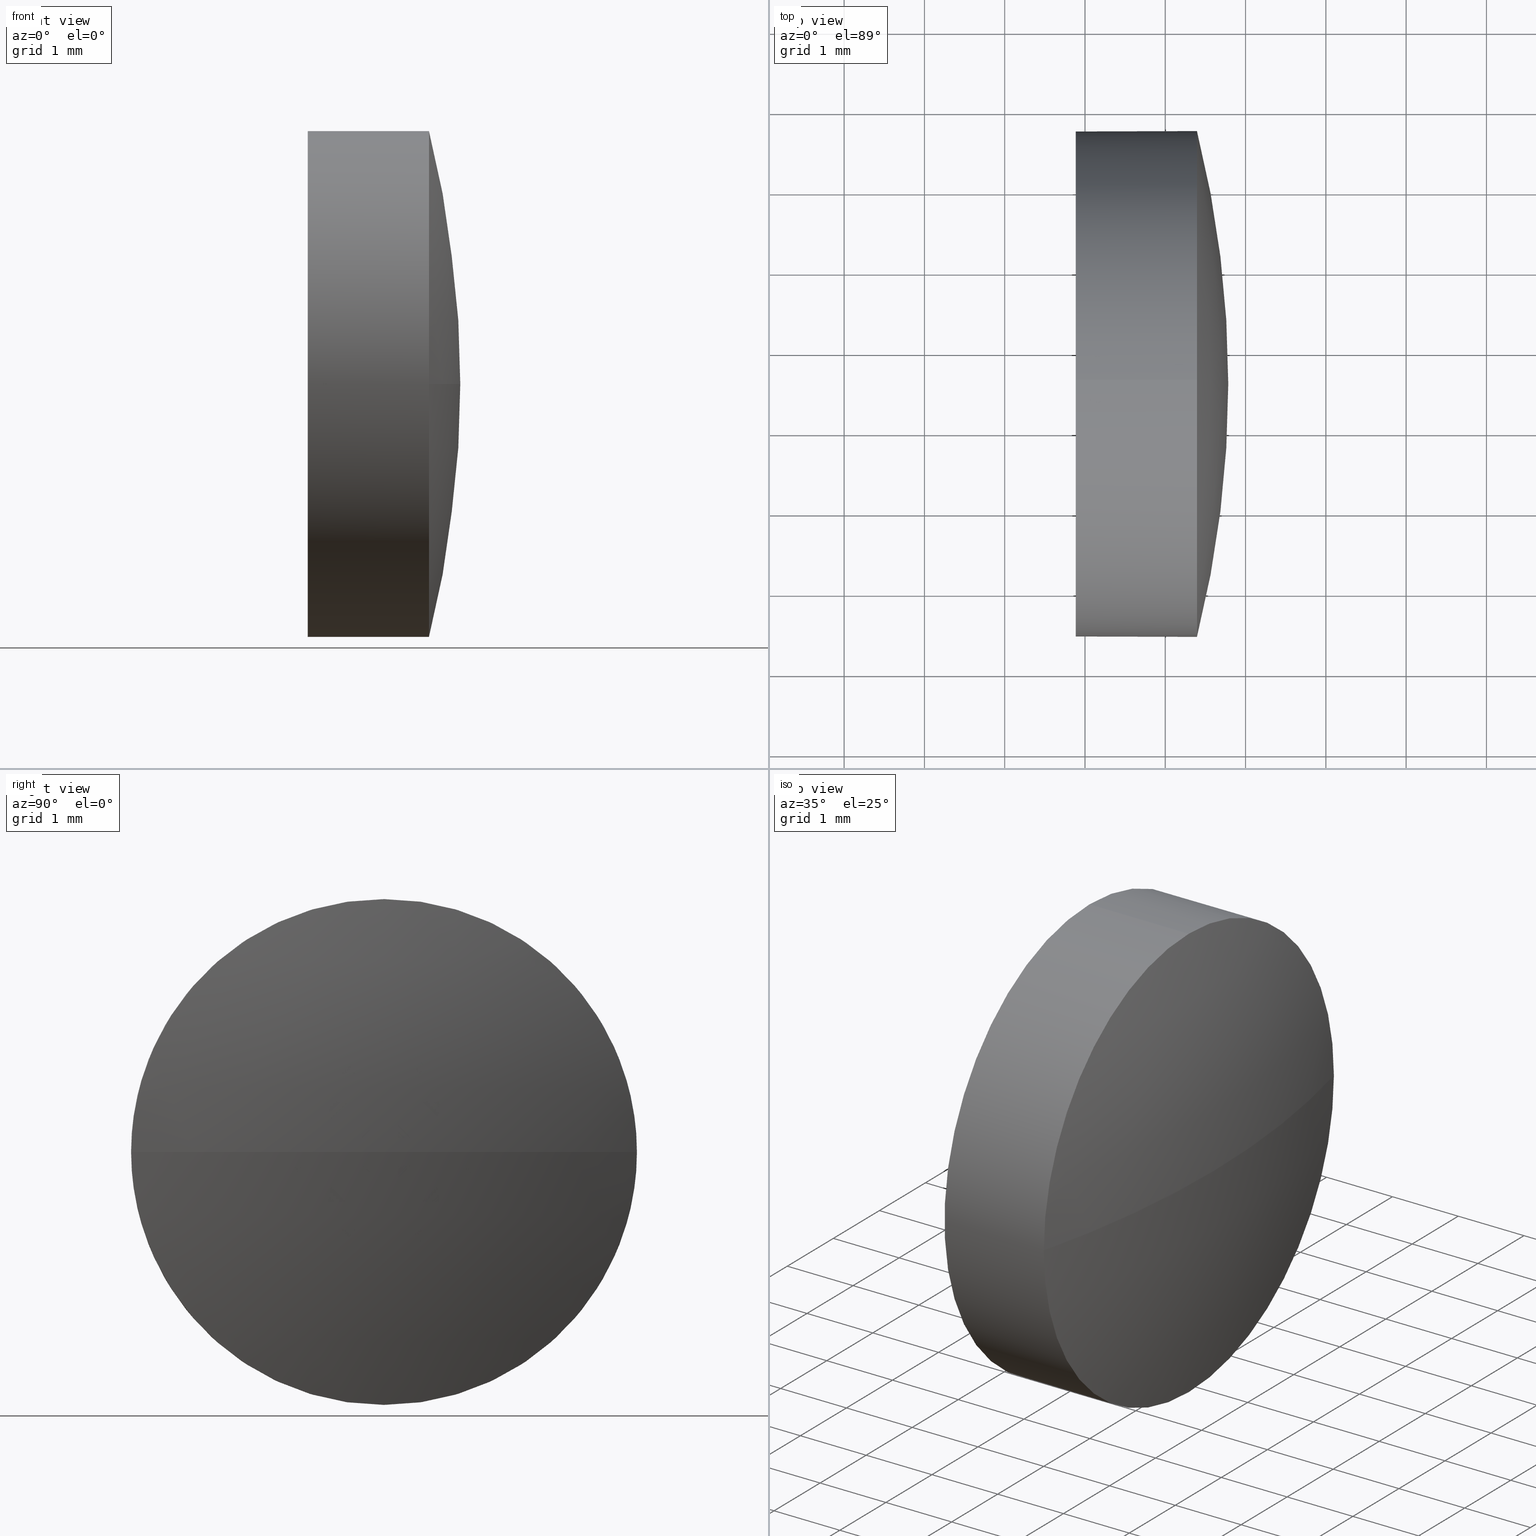
[diagram: canonical four-view strip — front | top / right | iso, engineering-drawing reading convention]
A machine part, canonical four-view strip (front | top / right | iso — engineering-drawing reading convention). The complete STEP part file that produces these views, byte-faithful:
ISO-10303-21;
HEADER;
FILE_DESCRIPTION (( 'STEP AP214' ),
    '1' );
FILE_NAME ('100097.STEP',
    '2019-05-13T05:56:05',
    ( '' ),
    ( '' ),
    'SwSTEP 2.0',
    'SolidWorks 2016',
    '' );
FILE_SCHEMA (( 'AUTOMOTIVE_DESIGN' ));
ENDSEC;

DATA;
#1 = DIRECTION ( 'NONE',  ( -0.0000000000000000000, 0.0000000000000000000, 1.000000000000000000 ) ) ;
#2 = FACE_OUTER_BOUND ( 'NONE', #132, .T. ) ;
#3 = FACE_OUTER_BOUND ( 'NONE', #169, .T. ) ;
#4 = VERTEX_POINT ( 'NONE', #153 ) ;
#5 = CARTESIAN_POINT ( 'NONE',  ( 447.0229086079864400, 67.58735190658296700, 0.0000000000000000000 ) ) ;
#6 = AXIS2_PLACEMENT_3D ( 'NONE', #106, #180, #99 ) ;
#7 = SURFACE_SIDE_STYLE ('',( #66 ) ) ;
#8 = FACE_OUTER_BOUND ( 'NONE', #40, .T. ) ;
#9 = CARTESIAN_POINT ( 'NONE',  ( 447.8845367775709300, 67.58735190658296700, 0.0000000000000000000 ) ) ;
#10 = ORIENTED_EDGE ( 'NONE', *, *, #98, .T. ) ;
#11 = ORIENTED_EDGE ( 'NONE', *, *, #154, .T. ) ;
#12 = AXIS2_PLACEMENT_3D ( 'NONE', #45, #122, #75 ) ;
#13 = VERTEX_POINT ( 'NONE', #69 ) ;
#14 = PRESENTATION_STYLE_ASSIGNMENT (( #62 ) ) ;
#15 = ORIENTED_EDGE ( 'NONE', *, *, #154, .F. ) ;
#16 = CARTESIAN_POINT ( 'NONE',  ( 449.3945367775709200, 67.58735190658296700, 0.0000000000000000000 ) ) ;
#17 =( NAMED_UNIT ( * ) SI_UNIT ( $, .STERADIAN. ) SOLID_ANGLE_UNIT ( ) );
#18 = CARTESIAN_POINT ( 'NONE',  ( 447.0229086079864400, 67.58735190658296700, 3.150000000000013700 ) ) ;
#19 = COLOUR_RGB ( '',1.000000000000000000, 1.000000000000000000, 1.000000000000000000 ) ;
#20 =( NAMED_UNIT ( * ) PLANE_ANGLE_UNIT ( ) SI_UNIT ( $, .RADIAN. ) );
#21 = ADVANCED_FACE ( 'NONE', ( #8 ), #116, .F. ) ;
#22 = MECHANICAL_DESIGN_GEOMETRIC_PRESENTATION_REPRESENTATION (  '', ( #93 ), #72 ) ;
#23 = ORIENTED_EDGE ( 'NONE', *, *, #101, .F. ) ;
#24 = EDGE_CURVE ( 'NONE', #55, #95, #83, .T. ) ;
#25 = UNCERTAINTY_MEASURE_WITH_UNIT (LENGTH_MEASURE( 1.000000000000000100E-005 ), #165, 'distance_accuracy_value', 'NONE');
#26 = ORIENTED_EDGE ( 'NONE', *, *, #129, .F. ) ;
#27 = DIRECTION ( 'NONE',  ( 0.0000000000000000000, 0.0000000000000000000, 1.000000000000000000 ) ) ;
#28 = DIRECTION ( 'NONE',  ( 0.0000000000000000000, 0.0000000000000000000, 1.000000000000000000 ) ) ;
#29 = FILL_AREA_STYLE_COLOUR ( '', #19 ) ;
#30 = AXIS2_PLACEMENT_3D ( 'NONE', #5, #145, #91 ) ;
#31 = DIRECTION ( 'NONE',  ( -1.000000000000000000, -0.0000000000000000000, -0.0000000000000000000 ) ) ;
#32 = LINE ( 'NONE', #18, #111 ) ;
#33 = ORIENTED_EDGE ( 'NONE', *, *, #35, .F. ) ;
#34 = PRODUCT_DEFINITION ( 'δ֪', '', #64, #152 ) ;
#35 = EDGE_CURVE ( 'NONE', #4, #13, #77, .T. ) ;
#36 = CIRCLE ( 'NONE', #63, 3.150000000000013700 ) ;
#37 = CIRCLE ( 'NONE', #85, 3.150000000000013700 ) ;
#38 = ORIENTED_EDGE ( 'NONE', *, *, #47, .F. ) ;
#39 = ORIENTED_EDGE ( 'NONE', *, *, #24, .F. ) ;
#40 = EDGE_LOOP ( 'NONE', ( #150, #10 ) ) ;
#41 = DIRECTION ( 'NONE',  ( 1.000000000000000000, 0.0000000000000000000, 0.0000000000000000000 ) ) ;
#42 = DIRECTION ( 'NONE',  ( 0.0000000000000000000, 0.0000000000000000000, -1.000000000000000000 ) ) ;
#43 = DIRECTION ( 'NONE',  ( -1.000000000000000000, -0.0000000000000000000, -0.0000000000000000000 ) ) ;
#44 = DIRECTION ( 'NONE',  ( 0.0000000000000000000, 1.000000000000000000, 1.224646799147353700E-016 ) ) ;
#45 = CARTESIAN_POINT ( 'NONE',  ( 436.8683829314171000, 67.58735190658293800, 0.0000000000000000000 ) ) ;
#46 = APPLICATION_PROTOCOL_DEFINITION ( 'draft international standard', 'automotive_design', 1998, #135 ) ;
#47 = EDGE_CURVE ( 'NONE', #113, #102, #68, .T. ) ;
#48 = CARTESIAN_POINT ( 'NONE',  ( 447.8845367775709300, 67.58735190658296700, 0.0000000000000000000 ) ) ;
#49 = PRODUCT_CONTEXT ( 'NONE', #135, 'mechanical' ) ;
#50 = STYLED_ITEM ( 'NONE', ( #14 ), #181 ) ;
#51 = PRESENTATION_STYLE_ASSIGNMENT (( #94 ) ) ;
#52 = UNCERTAINTY_MEASURE_WITH_UNIT (LENGTH_MEASURE( 1.000000000000000100E-005 ), #78, 'distance_accuracy_value', 'NONE');
#53 = AXIS2_PLACEMENT_3D ( 'NONE', #160, #71, #86 ) ;
#54 = FACE_OUTER_BOUND ( 'NONE', #87, .T. ) ;
#55 = VERTEX_POINT ( 'NONE', #143 ) ;
#56 = CARTESIAN_POINT ( 'NONE',  ( 436.8683829314171000, 67.58735190658293800, 0.0000000000000000000 ) ) ;
#57 = DIRECTION ( 'NONE',  ( 0.0000000000000000000, 0.0000000000000000000, 1.000000000000000000 ) ) ;
#58 =( LENGTH_UNIT ( ) NAMED_UNIT ( * ) SI_UNIT ( .MILLI., .METRE. ) );
#59 = PRESENTATION_LAYER_ASSIGNMENT (  '', '', ( #50 ) ) ;
#60 = FILL_AREA_STYLE ('',( #174 ) ) ;
#61 = ORIENTED_EDGE ( 'NONE', *, *, #35, .T. ) ;
#62 = SURFACE_STYLE_USAGE ( .BOTH. , #7 ) ;
#63 = AXIS2_PLACEMENT_3D ( 'NONE', #16, #88, #27 ) ;
#64 = PRODUCT_DEFINITION_FORMATION_WITH_SPECIFIED_SOURCE ( '�κ�', '', #67, .NOT_KNOWN. ) ;
#65 = ORIENTED_EDGE ( 'NONE', *, *, #76, .T. ) ;
#66 = SURFACE_STYLE_FILL_AREA ( #92 ) ;
#67 = PRODUCT ( '100097', '100097', '', ( #49 ) ) ;
#68 = CIRCLE ( 'NONE', #127, 12.91615384615379900 ) ;
#69 = CARTESIAN_POINT ( 'NONE',  ( 449.3945367775709200, 67.58735190658296700, 3.150000000000013700 ) ) ;
#70 = CYLINDRICAL_SURFACE ( 'NONE', #30, 3.150000000000013700 ) ;
#71 = DIRECTION ( 'NONE',  ( -1.000000000000000000, -0.0000000000000000000, -0.0000000000000000000 ) ) ;
#72 =( GEOMETRIC_REPRESENTATION_CONTEXT ( 3 ) GLOBAL_UNCERTAINTY_ASSIGNED_CONTEXT ( ( #185 ) ) GLOBAL_UNIT_ASSIGNED_CONTEXT ( ( #58, #20, #125 ) ) REPRESENTATION_CONTEXT ( 'NONE', 'WORKASPACE' ) );
#73 = DIRECTION ( 'NONE',  ( -1.000000000000000000, -0.0000000000000000000, -0.0000000000000000000 ) ) ;
#74 = DIRECTION ( 'NONE',  ( 0.0000000000000000000, 1.000000000000000000, 0.0000000000000000000 ) ) ;
#75 = DIRECTION ( 'NONE',  ( 0.0000000000000000000, 1.000000000000000000, 0.0000000000000000000 ) ) ;
#76 = EDGE_CURVE ( 'NONE', #102, #55, #36, .T. ) ;
#77 = CIRCLE ( 'NONE', #103, 3.150000000000013700 ) ;
#78 =( LENGTH_UNIT ( ) NAMED_UNIT ( * ) SI_UNIT ( .MILLI., .METRE. ) );
#79 = ADVANCED_FACE ( 'NONE', ( #2 ), #155, .T. ) ;
#80 = ORIENTED_EDGE ( 'NONE', *, *, #117, .F. ) ;
#81 =( NAMED_UNIT ( * ) SI_UNIT ( $, .STERADIAN. ) SOLID_ANGLE_UNIT ( ) );
#82 = AXIS2_PLACEMENT_3D ( 'NONE', #110, #176, #44 ) ;
#83 = LINE ( 'NONE', #120, #105 ) ;
#84 = ORIENTED_EDGE ( 'NONE', *, *, #98, .F. ) ;
#85 = AXIS2_PLACEMENT_3D ( 'NONE', #162, #31, #134 ) ;
#86 = DIRECTION ( 'NONE',  ( 0.0000000000000000000, 0.0000000000000000000, 1.000000000000000000 ) ) ;
#87 = EDGE_LOOP ( 'NONE', ( #26, #175, #15, #33 ) ) ;
#88 = DIRECTION ( 'NONE',  ( -1.000000000000000000, -0.0000000000000000000, -0.0000000000000000000 ) ) ;
#89 = CARTESIAN_POINT ( 'NONE',  ( 449.3945367775709200, 70.73735190658295800, 0.0000000000000000000 ) ) ;
#90 = DIRECTION ( 'NONE',  ( -1.000000000000000000, -0.0000000000000000000, -0.0000000000000000000 ) ) ;
#91 = DIRECTION ( 'NONE',  ( 0.0000000000000000000, 0.0000000000000000000, 1.000000000000000000 ) ) ;
#92 = FILL_AREA_STYLE ('',( #29 ) ) ;
#93 = STYLED_ITEM ( 'NONE', ( #51 ), #149 ) ;
#94 = SURFACE_STYLE_USAGE ( .BOTH. , #96 ) ;
#95 = VERTEX_POINT ( 'NONE', #172 ) ;
#96 = SURFACE_SIDE_STYLE ('',( #131 ) ) ;
#97 = APPLICATION_CONTEXT ( 'automotive_design' ) ;
#98 = EDGE_CURVE ( 'NONE', #95, #130, #183, .T. ) ;
#99 = DIRECTION ( 'NONE',  ( 1.000000000000000000, 0.0000000000000000000, 0.0000000000000000000 ) ) ;
#100 = SPHERICAL_SURFACE ( 'NONE', #12, 12.91615384615380400 ) ;
#101 = EDGE_CURVE ( 'NONE', #130, #95, #128, .T. ) ;
#102 = VERTEX_POINT ( 'NONE', #89 ) ;
#103 = AXIS2_PLACEMENT_3D ( 'NONE', #186, #159, #156 ) ;
#104 = ORIENTED_EDGE ( 'NONE', *, *, #109, .F. ) ;
#105 = VECTOR ( 'NONE', #142, 1000.000000000000000 ) ;
#106 = CARTESIAN_POINT ( 'NONE',  ( 0.0000000000000000000, 0.0000000000000000000, 0.0000000000000000000 ) ) ;
#107 =( NAMED_UNIT ( * ) PLANE_ANGLE_UNIT ( ) SI_UNIT ( $, .RADIAN. ) );
#108 = PRODUCT_RELATED_PRODUCT_CATEGORY ( 'part', '', ( #67 ) ) ;
#109 = EDGE_CURVE ( 'NONE', #55, #4, #144, .T. ) ;
#110 = CARTESIAN_POINT ( 'NONE',  ( 436.8683829314171000, 67.58735190658293800, 0.0000000000000000000 ) ) ;
#111 = VECTOR ( 'NONE', #43, 1000.000000000000000 ) ;
#112 = AXIS2_PLACEMENT_3D ( 'NONE', #56, #124, #74 ) ;
#113 = VERTEX_POINT ( 'NONE', #173 ) ;
#114 = AXIS2_PLACEMENT_3D ( 'NONE', #48, #73, #28 ) ;
#115 = SHAPE_DEFINITION_REPRESENTATION ( #179, #181 ) ;
#116 = PLANE ( 'NONE',  #139 ) ;
#117 = EDGE_CURVE ( 'NONE', #13, #130, #32, .T. ) ;
#118 = ORIENTED_EDGE ( 'NONE', *, *, #76, .F. ) ;
#119 = CLOSED_SHELL ( 'NONE', ( #182, #126, #138, #79, #21 ) ) ;
#120 = CARTESIAN_POINT ( 'NONE',  ( 447.0229086079864400, 67.58735190658296700, -3.150000000000013700 ) ) ;
#121 = DIRECTION ( 'NONE',  ( 0.0000000000000000000, 0.0000000000000000000, 1.000000000000000000 ) ) ;
#122 = DIRECTION ( 'NONE',  ( -0.0000000000000000000, 0.0000000000000000000, -1.000000000000000000 ) ) ;
#123 = MECHANICAL_DESIGN_GEOMETRIC_PRESENTATION_REPRESENTATION (  '', ( #50 ), #146 ) ;
#124 = DIRECTION ( 'NONE',  ( -0.0000000000000000000, 0.0000000000000000000, -1.000000000000000000 ) ) ;
#125 =( NAMED_UNIT ( * ) SI_UNIT ( $, .STERADIAN. ) SOLID_ANGLE_UNIT ( ) );
#126 = ADVANCED_FACE ( 'NONE', ( #140 ), #100, .T. ) ;
#127 = AXIS2_PLACEMENT_3D ( 'NONE', #170, #1, #41 ) ;
#128 = CIRCLE ( 'NONE', #133, 3.150000000000013700 ) ;
#129 = EDGE_CURVE ( 'NONE', #113, #4, #178, .T. ) ;
#130 = VERTEX_POINT ( 'NONE', #137 ) ;
#131 = SURFACE_STYLE_FILL_AREA ( #60 ) ;
#132 = EDGE_LOOP ( 'NONE', ( #39, #184, #61, #158, #84 ) ) ;
#133 = AXIS2_PLACEMENT_3D ( 'NONE', #9, #90, #57 ) ;
#134 = DIRECTION ( 'NONE',  ( 0.0000000000000000000, 0.0000000000000000000, 1.000000000000000000 ) ) ;
#135 = APPLICATION_CONTEXT ( 'automotive_design' ) ;
#136 = ORIENTED_EDGE ( 'NONE', *, *, #24, .T. ) ;
#137 = CARTESIAN_POINT ( 'NONE',  ( 447.8845367775709300, 67.58735190658296700, 3.150000000000013700 ) ) ;
#138 = ADVANCED_FACE ( 'NONE', ( #54 ), #163, .T. ) ;
#139 = AXIS2_PLACEMENT_3D ( 'NONE', #157, #171, #42 ) ;
#140 = FACE_OUTER_BOUND ( 'NONE', #167, .T. ) ;
#141 = AXIS2_PLACEMENT_3D ( 'NONE', #161, #164, #121 ) ;
#142 = DIRECTION ( 'NONE',  ( -1.000000000000000000, -0.0000000000000000000, -0.0000000000000000000 ) ) ;
#143 = CARTESIAN_POINT ( 'NONE',  ( 449.3945367775709200, 67.58735190658296700, -3.150000000000013700 ) ) ;
#144 = CIRCLE ( 'NONE', #141, 3.150000000000013700 ) ;
#145 = DIRECTION ( 'NONE',  ( -1.000000000000000000, -0.0000000000000000000, -0.0000000000000000000 ) ) ;
#146 =( GEOMETRIC_REPRESENTATION_CONTEXT ( 3 ) GLOBAL_UNCERTAINTY_ASSIGNED_CONTEXT ( ( #52 ) ) GLOBAL_UNIT_ASSIGNED_CONTEXT ( ( #78, #177, #81 ) ) REPRESENTATION_CONTEXT ( 'NONE', 'WORKASPACE' ) );
#147 = APPLICATION_PROTOCOL_DEFINITION ( 'draft international standard', 'automotive_design', 1998, #97 ) ;
#148 =( GEOMETRIC_REPRESENTATION_CONTEXT ( 3 ) GLOBAL_UNCERTAINTY_ASSIGNED_CONTEXT ( ( #25 ) ) GLOBAL_UNIT_ASSIGNED_CONTEXT ( ( #165, #107, #17 ) ) REPRESENTATION_CONTEXT ( 'NONE', 'WORKASPACE' ) );
#149 = MANIFOLD_SOLID_BREP ( '��ת1', #119 ) ;
#150 = ORIENTED_EDGE ( 'NONE', *, *, #101, .T. ) ;
#151 = ORIENTED_EDGE ( 'NONE', *, *, #129, .T. ) ;
#152 = PRODUCT_DEFINITION_CONTEXT ( 'detailed design', #97, 'design' ) ;
#153 = CARTESIAN_POINT ( 'NONE',  ( 449.3945367775709200, 64.43735190658293300, -3.857637417314168100E-016 ) ) ;
#154 = EDGE_CURVE ( 'NONE', #13, #102, #37, .T. ) ;
#155 = CYLINDRICAL_SURFACE ( 'NONE', #53, 3.150000000000013700 ) ;
#156 = DIRECTION ( 'NONE',  ( 0.0000000000000000000, 0.0000000000000000000, 1.000000000000000000 ) ) ;
#157 = CARTESIAN_POINT ( 'NONE',  ( 447.8845367775709300, 67.58735190658296700, 0.0000000000000000000 ) ) ;
#158 = ORIENTED_EDGE ( 'NONE', *, *, #117, .T. ) ;
#159 = DIRECTION ( 'NONE',  ( -1.000000000000000000, -0.0000000000000000000, -0.0000000000000000000 ) ) ;
#160 = CARTESIAN_POINT ( 'NONE',  ( 447.0229086079864400, 67.58735190658296700, 0.0000000000000000000 ) ) ;
#161 = CARTESIAN_POINT ( 'NONE',  ( 449.3945367775709200, 67.58735190658296700, 0.0000000000000000000 ) ) ;
#162 = CARTESIAN_POINT ( 'NONE',  ( 449.3945367775709200, 67.58735190658296700, 0.0000000000000000000 ) ) ;
#163 = SPHERICAL_SURFACE ( 'NONE', #112, 12.91615384615380400 ) ;
#164 = DIRECTION ( 'NONE',  ( -1.000000000000000000, -0.0000000000000000000, -0.0000000000000000000 ) ) ;
#165 =( LENGTH_UNIT ( ) NAMED_UNIT ( * ) SI_UNIT ( .MILLI., .METRE. ) );
#166 = COLOUR_RGB ( '',1.000000000000000000, 1.000000000000000000, 1.000000000000000000 ) ;
#167 = EDGE_LOOP ( 'NONE', ( #38, #151, #104, #118 ) ) ;
#168 = PRESENTATION_LAYER_ASSIGNMENT (  '', '', ( #93 ) ) ;
#169 = EDGE_LOOP ( 'NONE', ( #65, #136, #23, #80, #11 ) ) ;
#170 = CARTESIAN_POINT ( 'NONE',  ( 436.8683829314171000, 67.58735190658293800, 0.0000000000000000000 ) ) ;
#171 = DIRECTION ( 'NONE',  ( 1.000000000000000000, 0.0000000000000000000, 0.0000000000000000000 ) ) ;
#172 = CARTESIAN_POINT ( 'NONE',  ( 447.8845367775709300, 67.58735190658296700, -3.150000000000013700 ) ) ;
#173 = CARTESIAN_POINT ( 'NONE',  ( 449.7845367775709100, 67.58735190658293800, 0.0000000000000000000 ) ) ;
#174 = FILL_AREA_STYLE_COLOUR ( '', #166 ) ;
#175 = ORIENTED_EDGE ( 'NONE', *, *, #47, .T. ) ;
#176 = DIRECTION ( 'NONE',  ( 0.0000000000000000000, 1.224646799147353200E-016, -1.000000000000000000 ) ) ;
#177 =( NAMED_UNIT ( * ) PLANE_ANGLE_UNIT ( ) SI_UNIT ( $, .RADIAN. ) );
#178 = CIRCLE ( 'NONE', #82, 12.91615384615379900 ) ;
#179 = PRODUCT_DEFINITION_SHAPE ( 'NONE', 'NONE',  #34 ) ;
#180 = DIRECTION ( 'NONE',  ( 0.0000000000000000000, 0.0000000000000000000, 1.000000000000000000 ) ) ;
#181 = ADVANCED_BREP_SHAPE_REPRESENTATION ( '100097', ( #149, #6 ), #148 ) ;
#182 = ADVANCED_FACE ( 'NONE', ( #3 ), #70, .T. ) ;
#183 = CIRCLE ( 'NONE', #114, 3.150000000000013700 ) ;
#184 = ORIENTED_EDGE ( 'NONE', *, *, #109, .T. ) ;
#185 = UNCERTAINTY_MEASURE_WITH_UNIT (LENGTH_MEASURE( 1.000000000000000100E-005 ), #58, 'distance_accuracy_value', 'NONE');
#186 = CARTESIAN_POINT ( 'NONE',  ( 449.3945367775709200, 67.58735190658296700, 0.0000000000000000000 ) ) ;
ENDSEC;
END-ISO-10303-21;
